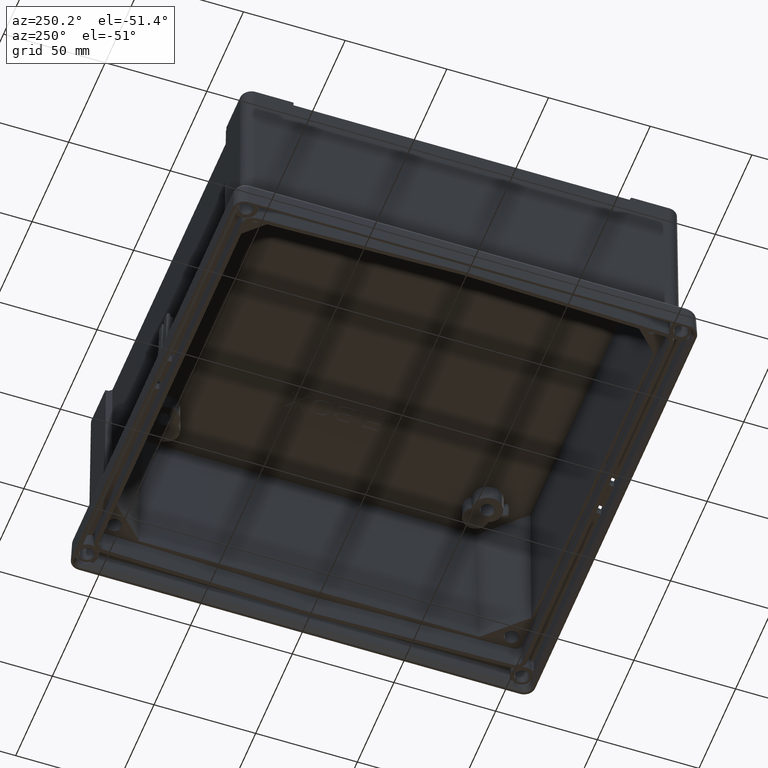
[diagram: clean part render]
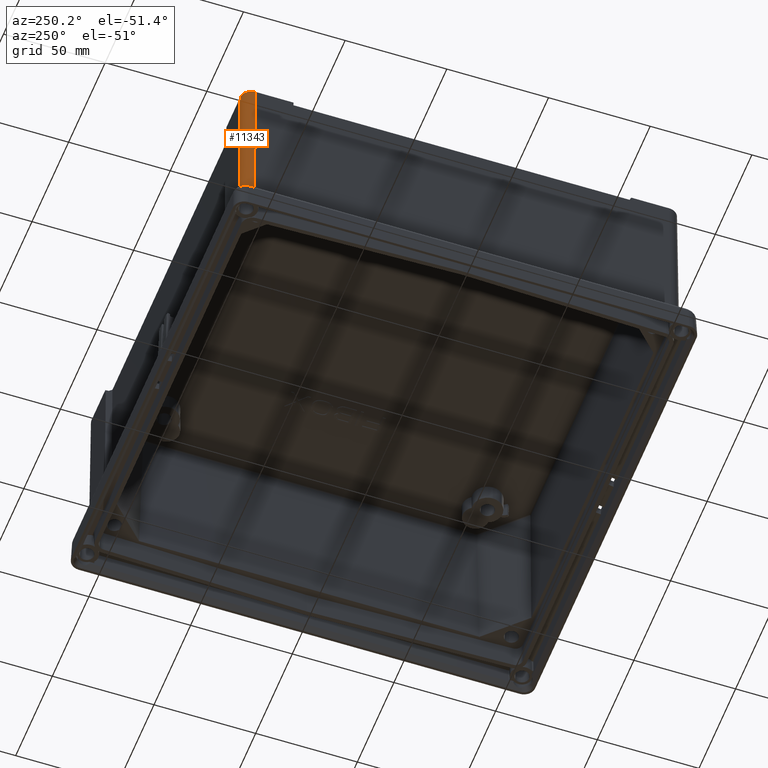
[diagram: same view with one face highlighted and labeled with its STEP entity id]
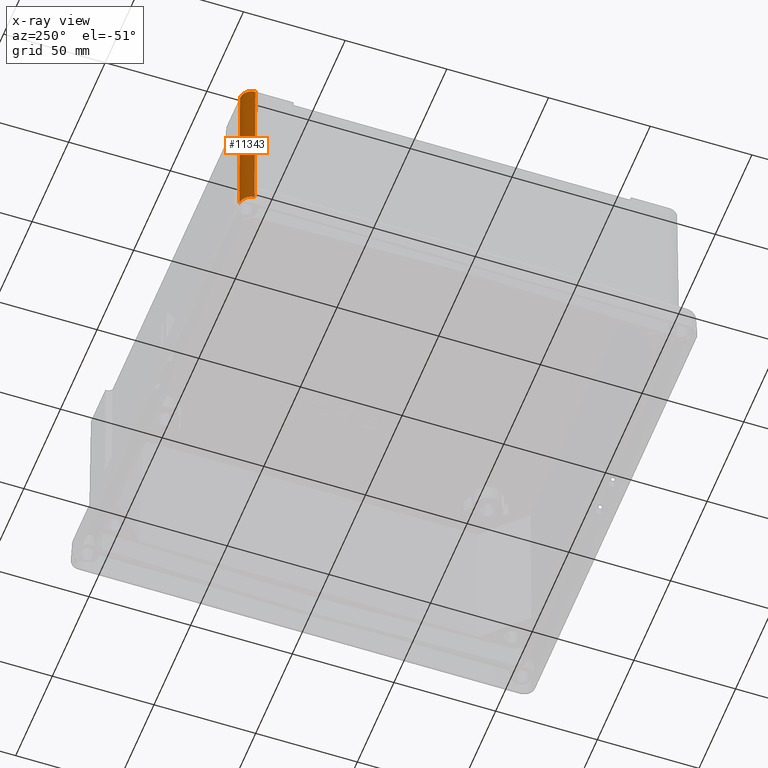
[diagram: x-ray of the same camera — body ghosted, the highlighted face saturated]
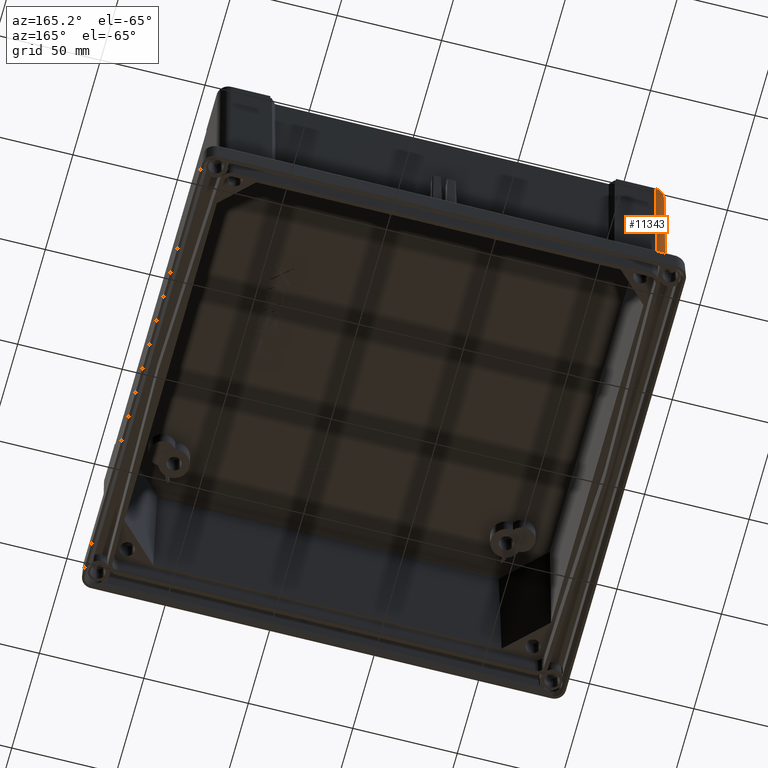
[diagram: same view with one face highlighted and labeled with its STEP entity id]
A machine part, auxiliary view. The second image highlights one B-rep face of the part: STEP entity #11343.
The next image is the same camera in x-ray: the body ghosted, the highlighted face saturated — about 0% of this face is hidden behind the body in this view.
A second angle (auxiliary view) of the same face is appended — the face is thin or edge-on in the first view.
In plain terms, the highlighted cylindrical surface (edge-blend (fillet) strip) has radius 5.5 mm, axis along (-0.0087, 0.0087, -0.9999).
Its self-contained STEP definition (entity closure, byte-faithful):
#2243 = CARTESIAN_POINT ( 'NONE',  ( -132.2472565900465000, 101.7624660131935900, 94.84999999999999400 ) ) ;
#2244 = CARTESIAN_POINT ( 'NONE',  ( -132.2472565900465300, 104.9842195524757500, 94.84999999999999400 ) ) ;
#2245 = CARTESIAN_POINT ( 'NONE',  ( -129.9692195524757200, 107.2622565900465200, 94.84999999999999400 ) ) ;
#2246 = CARTESIAN_POINT ( 'NONE',  ( -126.7474660131935600, 107.2622565900465300, 94.84999999999999400 ) ) ;
#2247 =( BOUNDED_CURVE ( )  B_SPLINE_CURVE ( 3, ( #2246, #2245, #2244, #2243 ),
 .UNSPECIFIED., .F., .T. ) 
 B_SPLINE_CURVE_WITH_KNOTS ( ( 4, 4 ),
 ( 5.497825219993065300, 7.068545394366085000 ),
 .UNSPECIFIED. ) 
 CURVE ( )  GEOMETRIC_REPRESENTATION_ITEM ( )  RATIONAL_B_SPLINE_CURVE ( ( 1.000000000000000000, 0.8047558030806110100, 0.8047558030806110100, 1.000000000000000000 ) ) 
 REPRESENTATION_ITEM ( '' )  );
#2248 = CARTESIAN_POINT ( 'NONE',  ( -126.7474660131935600, 107.2622565900465300, 94.84999999999999400 ) ) ;
#2249 = CARTESIAN_POINT ( 'NONE',  ( -132.2472565900465000, 101.7624660131935900, 94.84999999999999400 ) ) ;
#4968 = DIRECTION ( 'NONE',  ( -0.008726203243944684000, 0.008726203243943983200, -0.9999238504775704900 ) ) ;
#4969 = VECTOR ( 'NONE', #4968, 1000.000000000000100 ) ;
#4970 = CARTESIAN_POINT ( 'NONE',  ( -132.5932755964999200, 102.1084850196469800, 55.20014913142097900 ) ) ;
#4971 = LINE ( 'NONE', #4970, #4969 ) ;
#4973 = CARTESIAN_POINT ( 'NONE',  ( -132.9392948533667900, 102.4545025031291500, 15.55026956828075400 ) ) ;
#5168 = CARTESIAN_POINT ( 'NONE',  ( -129.1779068138169700, 107.6759419360853500, 15.24064506542101500 ) ) ;
#5169 = CARTESIAN_POINT ( 'NONE',  ( -127.4427287855192900, 107.9575193623722400, 15.18077743403472400 ) ) ;
#5170 = DIRECTION ( 'NONE',  ( -0.008726203243944437700, 0.008726203243944089000, -0.9999238504775704900 ) ) ;
#5171 = VECTOR ( 'NONE', #5170, 1000.000000000000100 ) ;
#5172 = CARTESIAN_POINT ( 'NONE',  ( -127.0950973993564300, 107.6098879762093900, 55.01538871701734500 ) ) ;
#5173 = LINE ( 'NONE', #5172, #5171 ) ;
#5174 = DIRECTION ( 'NONE',  ( -0.9999619230641713100, 0.0000000000000000000, 0.008726535498374763900 ) ) ;
#5175 = DIRECTION ( 'NONE',  ( -0.008726203243944337000, 0.008726203243944161800, -0.9999238504775704900 ) ) ;
#5176 = CARTESIAN_POINT ( 'NONE',  ( -126.7423462800883400, 101.7573462800883700, 95.38866736030792000 ) ) ;
#5177 = AXIS2_PLACEMENT_3D ( 'NONE', #5176, #5175, #5174 ) ;
#5178 = CYLINDRICAL_SURFACE ( 'NONE', #5177, 5.499999999999988500 ) ;
#5182 = FACE_OUTER_BOUND ( 'NONE', #11344, .T. ) ;
#5200 = CARTESIAN_POINT ( 'NONE',  ( -129.1779068138169700, 107.6759419360853500, 15.24064506542101500 ) ) ;
#5201 = CARTESIAN_POINT ( 'NONE',  ( -129.4516348843058000, 107.5846808839992800, 15.26004854920969400 ) ) ;
#5202 = CARTESIAN_POINT ( 'NONE',  ( -129.7158548965239200, 107.4728139663858600, 15.27627555402104400 ) ) ;
#5203 = CARTESIAN_POINT ( 'NONE',  ( -130.2253908265758200, 107.2085933014253800, 15.30610128815165400 ) ) ;
#5204 = CARTESIAN_POINT ( 'NONE',  ( -130.4719614155707700, 107.0550233973813900, 15.31965608311733700 ) ) ;
#5205 = CARTESIAN_POINT ( 'NONE',  ( -130.9324218159006000, 106.7156315572548500, 15.34495111848798900 ) ) ;
#5206 = CARTESIAN_POINT ( 'NONE',  ( -131.1478783013666000, 106.5292807011316800, 15.35675242670559500 ) ) ;
#5207 = CARTESIAN_POINT ( 'NONE',  ( -131.5493880626775400, 106.1235032227780600, 15.37979377719823000 ) ) ;
#5208 = CARTESIAN_POINT ( 'NONE',  ( -131.7368635609250000, 105.9019027134018700, 15.39111764185675000 ) ) ;
#5209 = CARTESIAN_POINT ( 'NONE',  ( -132.0718080789081900, 105.4361552129883800, 15.41343955388673800 ) ) ;
#5210 = CARTESIAN_POINT ( 'NONE',  ( -132.2196414405588900, 105.1923938546141800, 15.42444030825553200 ) ) ;
#5211 = CARTESIAN_POINT ( 'NONE',  ( -132.4767404093259400, 104.6835243554652400, 15.44689483827751400 ) ) ;
#5212 = CARTESIAN_POINT ( 'NONE',  ( -132.5865697621044600, 104.4165887365686100, 15.45842473816543400 ) ) ;
#5213 = CARTESIAN_POINT ( 'NONE',  ( -132.8510649771714000, 103.5947922267675000, 15.49444099095825300 ) ) ;
#5214 = CARTESIAN_POINT ( 'NONE',  ( -132.9395625325216200, 103.0320594771839400, 15.51961790369711400 ) ) ;
#5215 = CARTESIAN_POINT ( 'NONE',  ( -132.9392948533667900, 102.4545025031291500, 15.55026956828075400 ) ) ;
#5222 = B_SPLINE_CURVE_WITH_KNOTS ( 'NONE', 3,
 ( #5215, #5214, #5213, #5212, #5211, #5210, #5209, #5208, #5207, #5206, #5205, #5204, #5203, #5202, #5201, #5200 ),
 .UNSPECIFIED., .F., .F.,
 ( 4, 2, 2, 2, 2, 2, 2, 4 ),
 ( 7.766467625138956900E-016, 0.001710481861340087200, 0.002565722792009722400, 0.003420963722679358200, 0.004276204653348992600, 0.005131445584018628700, 0.005986686514688263100, 0.006841927445357899200 ),
 .UNSPECIFIED. ) ;
#5223 = CARTESIAN_POINT ( 'NONE',  ( -127.4427287855192900, 107.9575193623722400, 15.18077743403472400 ) ) ;
#5224 = CARTESIAN_POINT ( 'NONE',  ( -128.0339059263270700, 107.9575193623722400, 15.18077743403472900 ) ) ;
#5225 = CARTESIAN_POINT ( 'NONE',  ( -128.6172992146846900, 107.8628487418538500, 15.20090584378350200 ) ) ;
#5226 = CARTESIAN_POINT ( 'NONE',  ( -129.1779068138169700, 107.6759419360853500, 15.24064506542101500 ) ) ;
#5227 =( BOUNDED_CURVE ( )  B_SPLINE_CURVE ( 3, ( #5226, #5225, #5224, #5223 ),
 .UNSPECIFIED., .F., .T. ) 
 B_SPLINE_CURVE_WITH_KNOTS ( ( 4, 4 ),
 ( 6.001454657659033700, 6.322515931748791100 ),
 .UNSPECIFIED. ) 
 CURVE ( )  GEOMETRIC_REPRESENTATION_ITEM ( )  RATIONAL_B_SPLINE_CURVE ( ( 1.000000000000000000, 0.9914284028317672500, 0.9914284028317672500, 1.000000000000000000 ) ) 
 REPRESENTATION_ITEM ( '' )  );
#11343 = ADVANCED_FACE ( 'NONE', ( #5182 ), #5178, .T. ) ;
#11344 = EDGE_LOOP ( 'NONE', ( #11345, #11348, #11351, #11354, #11356 ) ) ;
#11345 = ORIENTED_EDGE ( 'NONE', *, *, #11346, .T. ) ;
#11346 = EDGE_CURVE ( 'NONE', #16544, #11347, #5173, .T. ) ;
#11347 = VERTEX_POINT ( 'NONE', #5169 ) ;
#11348 = ORIENTED_EDGE ( 'NONE', *, *, #11349, .F. ) ;
#11349 = EDGE_CURVE ( 'NONE', #11350, #11347, #5227, .T. ) ;
#11350 = VERTEX_POINT ( 'NONE', #5168 ) ;
#11351 = ORIENTED_EDGE ( 'NONE', *, *, #11352, .F. ) ;
#11352 = EDGE_CURVE ( 'NONE', #11353, #11350, #5222, .T. ) ;
#11353 = VERTEX_POINT ( 'NONE', #4973 ) ;
#11354 = ORIENTED_EDGE ( 'NONE', *, *, #11355, .F. ) ;
#11355 = EDGE_CURVE ( 'NONE', #16542, #11353, #4971, .T. ) ;
#11356 = ORIENTED_EDGE ( 'NONE', *, *, #16540, .F. ) ;
#16540 = EDGE_CURVE ( 'NONE', #16544, #16542, #2247, .T. ) ;
#16542 = VERTEX_POINT ( 'NONE', #2249 ) ;
#16544 = VERTEX_POINT ( 'NONE', #2248 ) ;